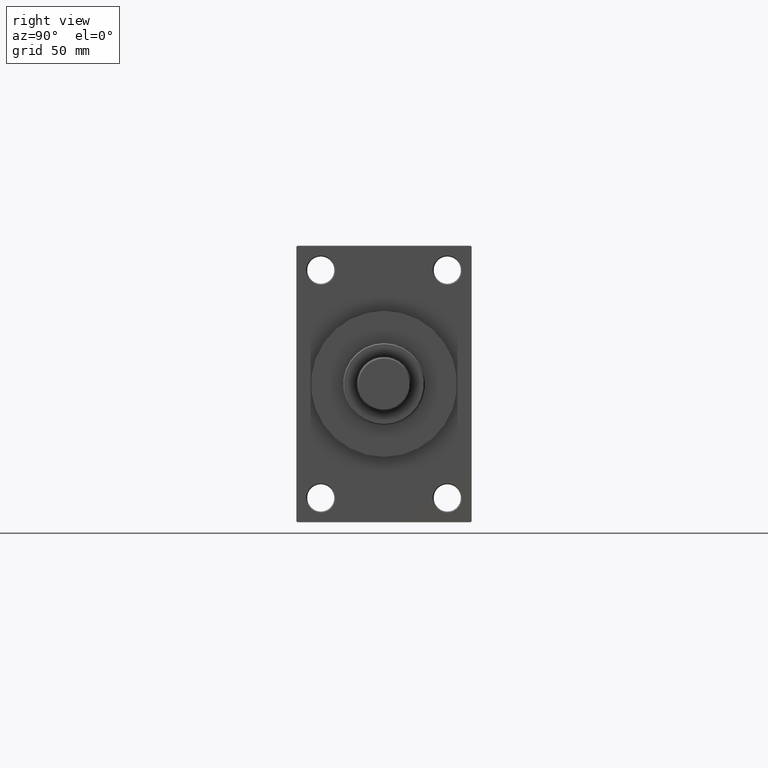
[diagram: clean part render]
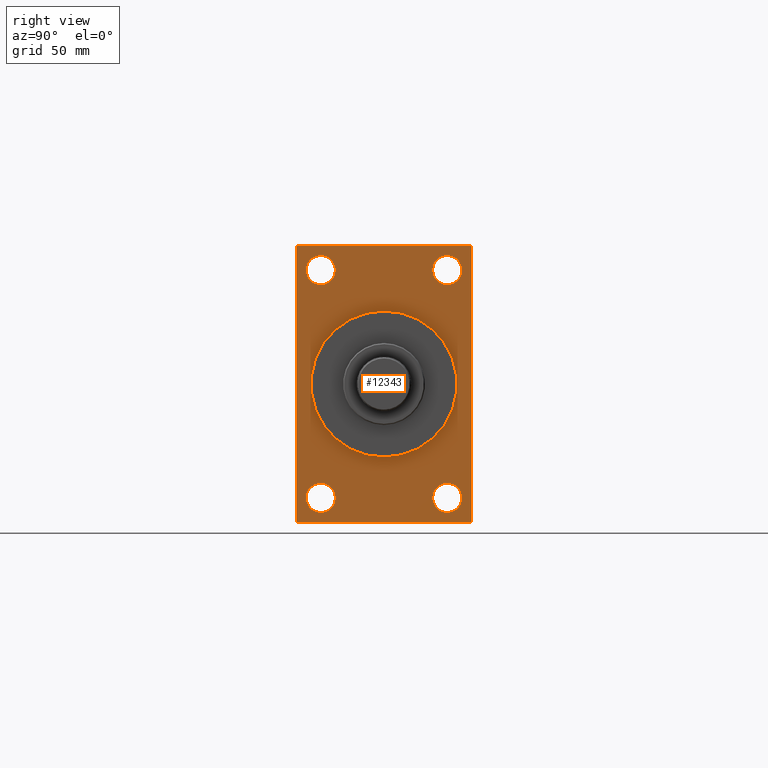
[diagram: same view with one face highlighted and labeled with its STEP entity id]
A machine part, right view. The second image highlights one B-rep face of the part: STEP entity #12343.
In plain terms, the highlighted planar face has unit normal (-1, 0, 0).
Its self-contained STEP definition (entity closure, byte-faithful):
#281 = DIRECTION ( 'NONE',  ( 0.000000000000000000, 0.000000000000000000, 1.000000000000000000 ) ) ;
#344 = DIRECTION ( 'NONE',  ( 0.000000000000000000, -1.000000000000000000, -1.541976423090495387E-16 ) ) ;
#401 = AXIS2_PLACEMENT_3D ( 'NONE', #9858, #13250, #21198 ) ;
#716 = VERTEX_POINT ( 'NONE', #20947 ) ;
#1026 = ORIENTED_EDGE ( 'NONE', *, *, #19626, .T. ) ;
#1603 = CARTESIAN_POINT ( 'NONE',  ( 245.0000000000000000, -44.50000000000000000, -71.00000000000000000 ) ) ;
#2320 = AXIS2_PLACEMENT_3D ( 'NONE', #45559, #16123, #26519 ) ;
#3228 = ORIENTED_EDGE ( 'NONE', *, *, #32062, .F. ) ;
#3365 = CARTESIAN_POINT ( 'NONE',  ( 245.0000000000000000, 44.50000000000006395, -70.99999999999998579 ) ) ;
#3679 = DIRECTION ( 'NONE',  ( -1.000000000000000000, 0.000000000000000000, -0.000000000000000000 ) ) ;
#3797 = EDGE_CURVE ( 'NONE', #37078, #34935, #45532, .T. ) ;
#3971 = VECTOR ( 'NONE', #17560, 1000.000000000000000 ) ;
#4004 = AXIS2_PLACEMENT_3D ( 'NONE', #42480, #9425, #31636 ) ;
#4026 = VERTEX_POINT ( 'NONE', #44287 ) ;
#4412 = VERTEX_POINT ( 'NONE', #23237 ) ;
#4438 = CIRCLE ( 'NONE', #42973, 7.499999999999978684 ) ;
#4528 = ORIENTED_EDGE ( 'NONE', *, *, #36220, .T. ) ;
#4674 = EDGE_CURVE ( 'NONE', #33252, #24173, #22349, .T. ) ;
#4804 = CARTESIAN_POINT ( 'NONE',  ( 245.0000000000000000, -44.49999999999995026, 70.99999999999998579 ) ) ;
#4877 = ORIENTED_EDGE ( 'NONE', *, *, #4674, .T. ) ;
#6708 = CARTESIAN_POINT ( 'NONE',  ( 245.0000000000000000, -44.99999999999997158, 70.99999999999998579 ) ) ;
#6760 = PLANE ( 'NONE',  #4004 ) ;
#6993 = CIRCLE ( 'NONE', #34714, 37.50000000000000711 ) ;
#7069 = CIRCLE ( 'NONE', #10051, 7.499999999999965361 ) ;
#7172 = DIRECTION ( 'NONE',  ( 0.000000000000000000, 0.000000000000000000, 1.000000000000000000 ) ) ;
#8482 = DIRECTION ( 'NONE',  ( -0.000000000000000000, -0.7071067811865622277, -0.7071067811865328068 ) ) ;
#8524 = CARTESIAN_POINT ( 'NONE',  ( 245.0000000000000000, 45.00000000000002132, 71.00000000000000000 ) ) ;
#9055 = LINE ( 'NONE', #1603, #10913 ) ;
#9180 = CIRCLE ( 'NONE', #18459, 7.499999999999985789 ) ;
#9425 = DIRECTION ( 'NONE',  ( -1.000000000000000000, 0.000000000000000000, -0.000000000000000000 ) ) ;
#9434 = ORIENTED_EDGE ( 'NONE', *, *, #44058, .T. ) ;
#9858 = CARTESIAN_POINT ( 'NONE',  ( 245.0000000000000000, -32.50000000000000000, 58.50000000000000711 ) ) ;
#10051 = AXIS2_PLACEMENT_3D ( 'NONE', #21727, #18334, #35743 ) ;
#10346 = EDGE_CURVE ( 'NONE', #716, #34337, #9055, .T. ) ;
#10370 = FACE_BOUND ( 'NONE', #20079, .T. ) ;
#10383 = AXIS2_PLACEMENT_3D ( 'NONE', #35696, #31842, #27978 ) ;
#10666 = DIRECTION ( 'NONE',  ( 0.000000000000000000, 0.000000000000000000, 1.000000000000000000 ) ) ;
#10913 = VECTOR ( 'NONE', #16312, 1000.000000000000114 ) ;
#11340 = VERTEX_POINT ( 'NONE', #31522 ) ;
#11557 = AXIS2_PLACEMENT_3D ( 'NONE', #26326, #26797, #281 ) ;
#11632 = ORIENTED_EDGE ( 'NONE', *, *, #34952, .F. ) ;
#12343 = ADVANCED_FACE ( 'NONE', ( #32345, #43426, #10370, #27768, #25097, #39803 ), #6760, .F. ) ;
#12388 = VECTOR ( 'NONE', #31646, 1000.000000000000000 ) ;
#12535 = EDGE_CURVE ( 'NONE', #23642, #22489, #27703, .T. ) ;
#12978 = CARTESIAN_POINT ( 'NONE',  ( 245.0000000000000000, 45.00000000000001421, -70.50000000000001421 ) ) ;
#13250 = DIRECTION ( 'NONE',  ( -1.000000000000000000, 0.000000000000000000, -0.000000000000000000 ) ) ;
#13435 = ORIENTED_EDGE ( 'NONE', *, *, #45342, .T. ) ;
#13693 = DIRECTION ( 'NONE',  ( -0.000000000000000000, 0.7071067811865376918, 0.7071067811865573427 ) ) ;
#14125 = CARTESIAN_POINT ( 'NONE',  ( 245.0000000000000000, -44.49999999999997158, -71.00000000000000000 ) ) ;
#14896 = VECTOR ( 'NONE', #8482, 1000.000000000000000 ) ;
#15388 = CARTESIAN_POINT ( 'NONE',  ( 245.0000000000000000, 44.50000000000007105, 71.00000000000000000 ) ) ;
#15997 = AXIS2_PLACEMENT_3D ( 'NONE', #43104, #21153, #27928 ) ;
#16123 = DIRECTION ( 'NONE',  ( 1.000000000000000000, 0.000000000000000000, 0.000000000000000000 ) ) ;
#16312 = DIRECTION ( 'NONE',  ( 0.000000000000000000, 0.7071067811865376918, -0.7071067811865573427 ) ) ;
#16514 = CARTESIAN_POINT ( 'NONE',  ( 245.0000000000000000, 0.000000000000000000, 37.50000000000000711 ) ) ;
#16550 = CIRCLE ( 'NONE', #401, 7.499999999999965361 ) ;
#17560 = DIRECTION ( 'NONE',  ( 0.000000000000000000, 0.000000000000000000, -1.000000000000000000 ) ) ;
#17716 = VERTEX_POINT ( 'NONE', #40614 ) ;
#17790 = DIRECTION ( 'NONE',  ( -1.000000000000000000, 0.000000000000000000, -0.000000000000000000 ) ) ;
#18144 = VERTEX_POINT ( 'NONE', #37591 ) ;
#18334 = DIRECTION ( 'NONE',  ( -1.000000000000000000, 0.000000000000000000, -0.000000000000000000 ) ) ;
#18459 = AXIS2_PLACEMENT_3D ( 'NONE', #19083, #3679, #10666 ) ;
#18498 = CARTESIAN_POINT ( 'NONE',  ( 245.0000000000000000, 32.50000000000000711, -65.99999999999997158 ) ) ;
#19083 = CARTESIAN_POINT ( 'NONE',  ( 245.0000000000000000, -32.50000000000000000, -58.49999999999999289 ) ) ;
#19197 = EDGE_LOOP ( 'NONE', ( #38231, #34509 ) ) ;
#19311 = VERTEX_POINT ( 'NONE', #41581 ) ;
#19626 = EDGE_CURVE ( 'NONE', #31892, #19311, #45146, .T. ) ;
#20079 = EDGE_LOOP ( 'NONE', ( #4877, #27371 ) ) ;
#20095 = DIRECTION ( 'NONE',  ( 0.000000000000000000, -1.000000000000000000, -1.541976423090495633E-16 ) ) ;
#20125 = ORIENTED_EDGE ( 'NONE', *, *, #12535, .T. ) ;
#20277 = CARTESIAN_POINT ( 'NONE',  ( 245.0000000000000000, 45.00000000000001421, -70.50000000000001421 ) ) ;
#20376 = VERTEX_POINT ( 'NONE', #16514 ) ;
#20471 = CARTESIAN_POINT ( 'NONE',  ( 245.0000000000000000, 45.00000000000002132, 70.50000000000004263 ) ) ;
#20947 = CARTESIAN_POINT ( 'NONE',  ( 245.0000000000000000, -44.99999999999997158, -70.50000000000000000 ) ) ;
#21153 = DIRECTION ( 'NONE',  ( -1.000000000000000000, 0.000000000000000000, -0.000000000000000000 ) ) ;
#21198 = DIRECTION ( 'NONE',  ( 0.000000000000000000, 0.000000000000000000, 1.000000000000000000 ) ) ;
#21400 = CARTESIAN_POINT ( 'NONE',  ( 245.0000000000000000, 32.50000000000000711, -58.50000000000000000 ) ) ;
#21727 = CARTESIAN_POINT ( 'NONE',  ( 245.0000000000000000, 32.50000000000000711, 58.50000000000000711 ) ) ;
#22191 = EDGE_LOOP ( 'NONE', ( #4528, #33830, #32862, #20125, #11632, #32026, #13435, #1026 ) ) ;
#22349 = CIRCLE ( 'NONE', #11557, 7.499999999999978684 ) ;
#22489 = VERTEX_POINT ( 'NONE', #20277 ) ;
#22721 = EDGE_LOOP ( 'NONE', ( #24377, #27209 ) ) ;
#22734 = EDGE_CURVE ( 'NONE', #11340, #24668, #16550, .T. ) ;
#22746 = EDGE_CURVE ( 'NONE', #45352, #17716, #28138, .T. ) ;
#22957 = VECTOR ( 'NONE', #344, 1000.000000000000000 ) ;
#23237 = CARTESIAN_POINT ( 'NONE',  ( 245.0000000000000000, -32.50000000000000000, -65.99999999999995737 ) ) ;
#23642 = VERTEX_POINT ( 'NONE', #3365 ) ;
#23745 = ORIENTED_EDGE ( 'NONE', *, *, #37712, .F. ) ;
#23966 = VECTOR ( 'NONE', #20095, 1000.000000000000000 ) ;
#24173 = VERTEX_POINT ( 'NONE', #34629 ) ;
#24377 = ORIENTED_EDGE ( 'NONE', *, *, #22746, .T. ) ;
#24573 = DIRECTION ( 'NONE',  ( 0.000000000000000000, 0.000000000000000000, 1.000000000000000000 ) ) ;
#24668 = VERTEX_POINT ( 'NONE', #41676 ) ;
#24707 = VECTOR ( 'NONE', #37830, 1000.000000000000114 ) ;
#25097 = FACE_BOUND ( 'NONE', #27619, .T. ) ;
#25350 = ORIENTED_EDGE ( 'NONE', *, *, #22734, .T. ) ;
#26326 = CARTESIAN_POINT ( 'NONE',  ( 245.0000000000000000, 32.50000000000000711, -58.50000000000000000 ) ) ;
#26519 = DIRECTION ( 'NONE',  ( 0.000000000000000000, 0.000000000000000000, -1.000000000000000000 ) ) ;
#26797 = DIRECTION ( 'NONE',  ( -1.000000000000000000, 0.000000000000000000, -0.000000000000000000 ) ) ;
#27209 = ORIENTED_EDGE ( 'NONE', *, *, #36853, .T. ) ;
#27371 = ORIENTED_EDGE ( 'NONE', *, *, #41200, .T. ) ;
#27619 = EDGE_LOOP ( 'NONE', ( #3228, #23745 ) ) ;
#27703 = LINE ( 'NONE', #12978, #41005 ) ;
#27768 = FACE_BOUND ( 'NONE', #22721, .T. ) ;
#27928 = DIRECTION ( 'NONE',  ( 0.000000000000000000, 0.000000000000000000, 1.000000000000000000 ) ) ;
#27978 = DIRECTION ( 'NONE',  ( 0.000000000000000000, 0.000000000000000000, 1.000000000000000000 ) ) ;
#28138 = CIRCLE ( 'NONE', #10383, 7.499999999999965361 ) ;
#30035 = CARTESIAN_POINT ( 'NONE',  ( 245.0000000000000000, 0.000000000000000000, 0.000000000000000000 ) ) ;
#30245 = LINE ( 'NONE', #8524, #22957 ) ;
#31212 = CARTESIAN_POINT ( 'NONE',  ( 245.0000000000000000, 45.00000000000001421, -70.99999999999998579 ) ) ;
#31420 = EDGE_CURVE ( 'NONE', #4412, #18144, #9180, .T. ) ;
#31522 = CARTESIAN_POINT ( 'NONE',  ( 245.0000000000000000, -32.50000000000000000, 51.00000000000004263 ) ) ;
#31636 = DIRECTION ( 'NONE',  ( -0.000000000000000000, 0.000000000000000000, 1.000000000000000000 ) ) ;
#31646 = DIRECTION ( 'NONE',  ( 0.000000000000000000, -4.886545002751570165E-17, -1.000000000000000000 ) ) ;
#31842 = DIRECTION ( 'NONE',  ( -1.000000000000000000, 0.000000000000000000, -0.000000000000000000 ) ) ;
#31892 = VERTEX_POINT ( 'NONE', #4804 ) ;
#32026 = ORIENTED_EDGE ( 'NONE', *, *, #3797, .T. ) ;
#32062 = EDGE_CURVE ( 'NONE', #20376, #4026, #42356, .T. ) ;
#32111 = LINE ( 'NONE', #42954, #12388 ) ;
#32345 = FACE_BOUND ( 'NONE', #40291, .T. ) ;
#32862 = ORIENTED_EDGE ( 'NONE', *, *, #38253, .F. ) ;
#33252 = VERTEX_POINT ( 'NONE', #18498 ) ;
#33710 = CIRCLE ( 'NONE', #15997, 7.499999999999965361 ) ;
#33830 = ORIENTED_EDGE ( 'NONE', *, *, #10346, .T. ) ;
#34337 = VERTEX_POINT ( 'NONE', #14125 ) ;
#34509 = ORIENTED_EDGE ( 'NONE', *, *, #40460, .T. ) ;
#34629 = CARTESIAN_POINT ( 'NONE',  ( 245.0000000000000000, 32.50000000000000711, -51.00000000000001421 ) ) ;
#34714 = AXIS2_PLACEMENT_3D ( 'NONE', #30035, #44744, #43799 ) ;
#34935 = VERTEX_POINT ( 'NONE', #43202 ) ;
#34952 = EDGE_CURVE ( 'NONE', #37078, #22489, #32111, .T. ) ;
#35696 = CARTESIAN_POINT ( 'NONE',  ( 245.0000000000000000, 32.50000000000000711, 58.50000000000000711 ) ) ;
#35743 = DIRECTION ( 'NONE',  ( 0.000000000000000000, 0.000000000000000000, 1.000000000000000000 ) ) ;
#36220 = EDGE_CURVE ( 'NONE', #19311, #716, #39755, .T. ) ;
#36853 = EDGE_CURVE ( 'NONE', #17716, #45352, #7069, .T. ) ;
#37078 = VERTEX_POINT ( 'NONE', #20471 ) ;
#37539 = CIRCLE ( 'NONE', #42137, 7.499999999999985789 ) ;
#37591 = CARTESIAN_POINT ( 'NONE',  ( 245.0000000000000000, -32.50000000000000000, -51.00000000000000711 ) ) ;
#37712 = EDGE_CURVE ( 'NONE', #4026, #20376, #6993, .T. ) ;
#37830 = DIRECTION ( 'NONE',  ( 0.000000000000000000, -0.7071067811865474617, 0.7071067811865474617 ) ) ;
#38231 = ORIENTED_EDGE ( 'NONE', *, *, #31420, .T. ) ;
#38253 = EDGE_CURVE ( 'NONE', #23642, #34337, #46385, .T. ) ;
#39755 = LINE ( 'NONE', #6708, #3971 ) ;
#39803 = FACE_OUTER_BOUND ( 'NONE', #22191, .T. ) ;
#40291 = EDGE_LOOP ( 'NONE', ( #25350, #9434 ) ) ;
#40460 = EDGE_CURVE ( 'NONE', #18144, #4412, #37539, .T. ) ;
#40614 = CARTESIAN_POINT ( 'NONE',  ( 245.0000000000000000, 32.50000000000000711, 65.99999999999997158 ) ) ;
#41005 = VECTOR ( 'NONE', #13693, 1000.000000000000114 ) ;
#41200 = EDGE_CURVE ( 'NONE', #24173, #33252, #4438, .T. ) ;
#41523 = CARTESIAN_POINT ( 'NONE',  ( 245.0000000000000000, -44.99999999999997158, 70.50000000000000000 ) ) ;
#41581 = CARTESIAN_POINT ( 'NONE',  ( 245.0000000000000000, -44.99999999999997158, 70.50000000000000000 ) ) ;
#41676 = CARTESIAN_POINT ( 'NONE',  ( 245.0000000000000000, -32.50000000000000000, 65.99999999999997158 ) ) ;
#42137 = AXIS2_PLACEMENT_3D ( 'NONE', #42182, #42901, #24573 ) ;
#42182 = CARTESIAN_POINT ( 'NONE',  ( 245.0000000000000000, -32.50000000000000000, -58.49999999999999289 ) ) ;
#42356 = CIRCLE ( 'NONE', #2320, 37.50000000000000711 ) ;
#42480 = CARTESIAN_POINT ( 'NONE',  ( 245.0000000000000000, 0.000000000000000000, 0.000000000000000000 ) ) ;
#42901 = DIRECTION ( 'NONE',  ( -1.000000000000000000, 0.000000000000000000, -0.000000000000000000 ) ) ;
#42954 = CARTESIAN_POINT ( 'NONE',  ( 245.0000000000000000, 45.00000000000002132, 71.00000000000000000 ) ) ;
#42973 = AXIS2_PLACEMENT_3D ( 'NONE', #21400, #17790, #7172 ) ;
#43104 = CARTESIAN_POINT ( 'NONE',  ( 245.0000000000000000, -32.50000000000000000, 58.50000000000000711 ) ) ;
#43202 = CARTESIAN_POINT ( 'NONE',  ( 245.0000000000000000, 44.50000000000007105, 71.00000000000000000 ) ) ;
#43426 = FACE_BOUND ( 'NONE', #19197, .T. ) ;
#43799 = DIRECTION ( 'NONE',  ( 0.000000000000000000, 0.000000000000000000, -1.000000000000000000 ) ) ;
#44058 = EDGE_CURVE ( 'NONE', #24668, #11340, #33710, .T. ) ;
#44287 = CARTESIAN_POINT ( 'NONE',  ( 245.0000000000000000, 4.592425496802575156E-15, -37.50000000000000711 ) ) ;
#44744 = DIRECTION ( 'NONE',  ( 1.000000000000000000, 0.000000000000000000, 0.000000000000000000 ) ) ;
#45146 = LINE ( 'NONE', #41523, #14896 ) ;
#45186 = CARTESIAN_POINT ( 'NONE',  ( 245.0000000000000000, 32.50000000000000711, 51.00000000000004263 ) ) ;
#45342 = EDGE_CURVE ( 'NONE', #34935, #31892, #30245, .T. ) ;
#45352 = VERTEX_POINT ( 'NONE', #45186 ) ;
#45532 = LINE ( 'NONE', #15388, #24707 ) ;
#45559 = CARTESIAN_POINT ( 'NONE',  ( 245.0000000000000000, 0.000000000000000000, 0.000000000000000000 ) ) ;
#46385 = LINE ( 'NONE', #31212, #23966 ) ;